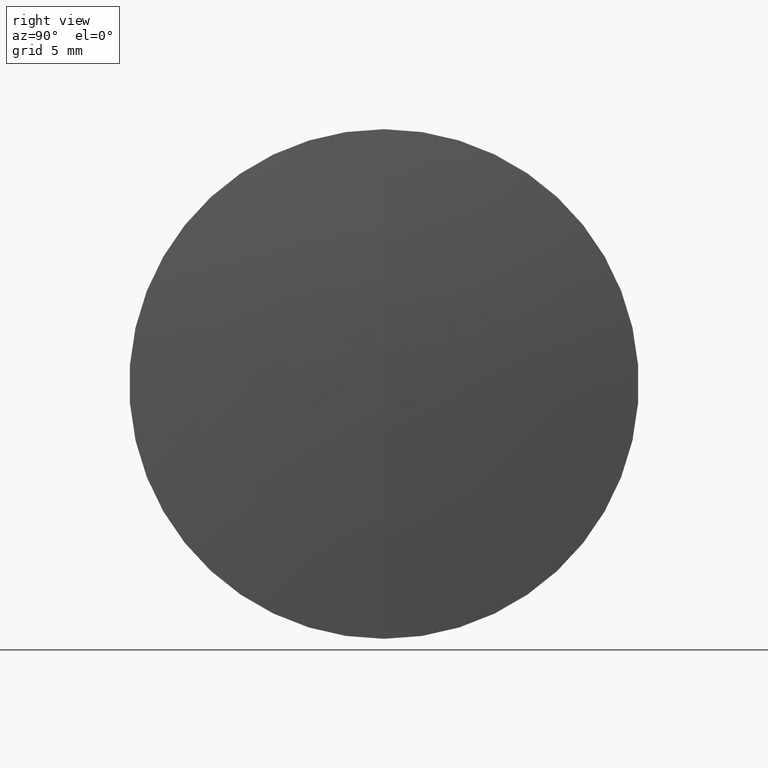
[diagram: clean part render]
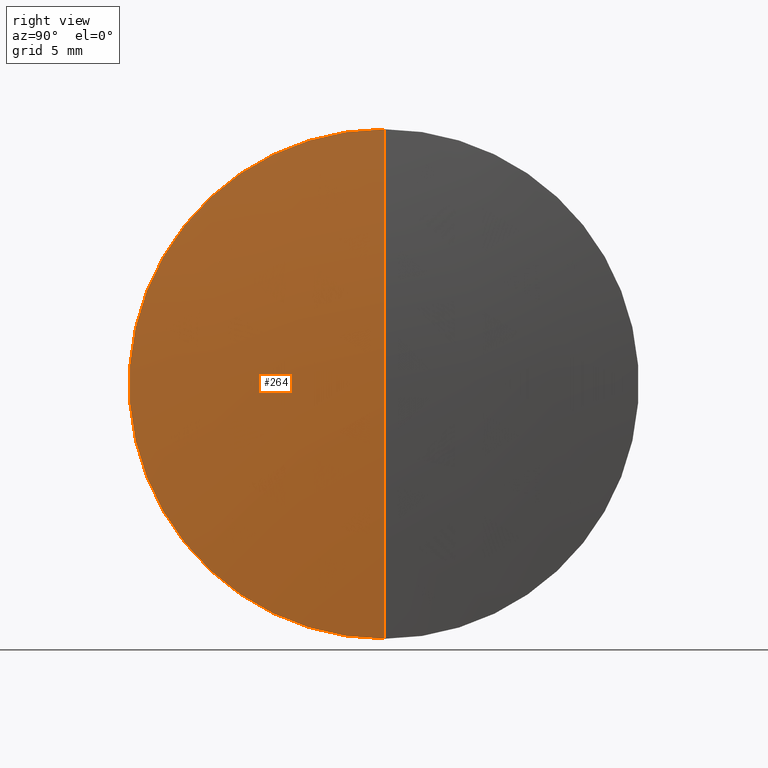
[diagram: same view with one face highlighted and labeled with its STEP entity id]
A machine part, right view. The second image highlights one B-rep face of the part: STEP entity #264.
In plain terms, the highlighted spherical surface has radius 128.2 mm.
Its self-contained STEP definition (entity closure, byte-faithful):
#4 = DIRECTION ( 'NONE',  ( -1.000000000000000000, -0.0000000000000000000, -0.0000000000000000000 ) ) ;
#25 = ORIENTED_EDGE ( 'NONE', *, *, #44, .T. ) ;
#32 = VERTEX_POINT ( 'NONE', #237 ) ;
#34 = SPHERICAL_SURFACE ( 'NONE', #246, 128.1999999999999900 ) ;
#35 = CARTESIAN_POINT ( 'NONE',  ( 131.0958458084200500, 0.0000000000000000000, 0.0000000000000000000 ) ) ;
#37 = EDGE_CURVE ( 'NONE', #32, #132, #86, .T. ) ;
#44 = EDGE_CURVE ( 'NONE', #62, #132, #200, .T. ) ;
#59 = DIRECTION ( 'NONE',  ( 0.0000000000000000000, 0.0000000000000000000, 1.000000000000000000 ) ) ;
#62 = VERTEX_POINT ( 'NONE', #256 ) ;
#63 = EDGE_LOOP ( 'NONE', ( #251, #25, #235 ) ) ;
#73 = DIRECTION ( 'NONE',  ( -0.0000000000000000000, 1.000000000000000000, 1.224646799147353200E-016 ) ) ;
#80 = DIRECTION ( 'NONE',  ( 0.0000000000000000000, 1.000000000000000000, 0.0000000000000000000 ) ) ;
#86 = CIRCLE ( 'NONE', #257, 12.69999999999999600 ) ;
#95 = CARTESIAN_POINT ( 'NONE',  ( 258.6652386893144400, 0.0000000000000000000, 0.0000000000000000000 ) ) ;
#132 = VERTEX_POINT ( 'NONE', #154 ) ;
#147 = EDGE_CURVE ( 'NONE', #62, #32, #266, .T. ) ;
#148 = AXIS2_PLACEMENT_3D ( 'NONE', #165, #228, #189 ) ;
#154 = CARTESIAN_POINT ( 'NONE',  ( 258.6652386893144400, 0.0000000000000000000, 12.69999999999999600 ) ) ;
#165 = CARTESIAN_POINT ( 'NONE',  ( 131.0958458084200500, 0.0000000000000000000, 0.0000000000000000000 ) ) ;
#169 = DIRECTION ( 'NONE',  ( 0.0000000000000000000, -1.224646799147353200E-016, 1.000000000000000000 ) ) ;
#178 = FACE_OUTER_BOUND ( 'NONE', #63, .T. ) ;
#189 = DIRECTION ( 'NONE',  ( 0.0000000000000000000, 0.0000000000000000000, -1.000000000000000000 ) ) ;
#200 = CIRCLE ( 'NONE', #148, 128.1999999999999900 ) ;
#211 = CARTESIAN_POINT ( 'NONE',  ( 131.0958458084200500, 0.0000000000000000000, 0.0000000000000000000 ) ) ;
#216 = AXIS2_PLACEMENT_3D ( 'NONE', #211, #73, #169 ) ;
#228 = DIRECTION ( 'NONE',  ( 0.0000000000000000000, -1.000000000000000000, 0.0000000000000000000 ) ) ;
#235 = ORIENTED_EDGE ( 'NONE', *, *, #37, .F. ) ;
#237 = CARTESIAN_POINT ( 'NONE',  ( 258.6652386893144400, 1.555301434917138200E-015, -12.69999999999999600 ) ) ;
#246 = AXIS2_PLACEMENT_3D ( 'NONE', #35, #80, #302 ) ;
#251 = ORIENTED_EDGE ( 'NONE', *, *, #147, .F. ) ;
#256 = CARTESIAN_POINT ( 'NONE',  ( 259.2958458084200400, 0.0000000000000000000, 7.849985982534533100E-015 ) ) ;
#257 = AXIS2_PLACEMENT_3D ( 'NONE', #95, #4, #59 ) ;
#264 = ADVANCED_FACE ( 'NONE', ( #178 ), #34, .T. ) ;
#266 = CIRCLE ( 'NONE', #216, 128.1999999999999900 ) ;
#302 = DIRECTION ( 'NONE',  ( 0.0000000000000000000, 0.0000000000000000000, 1.000000000000000000 ) ) ;